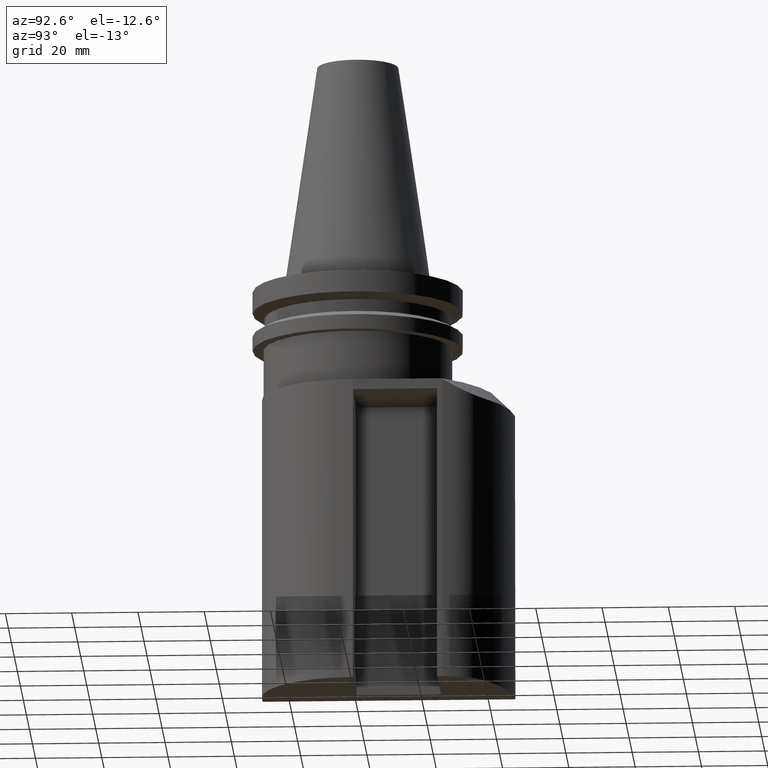
[diagram: clean part render]
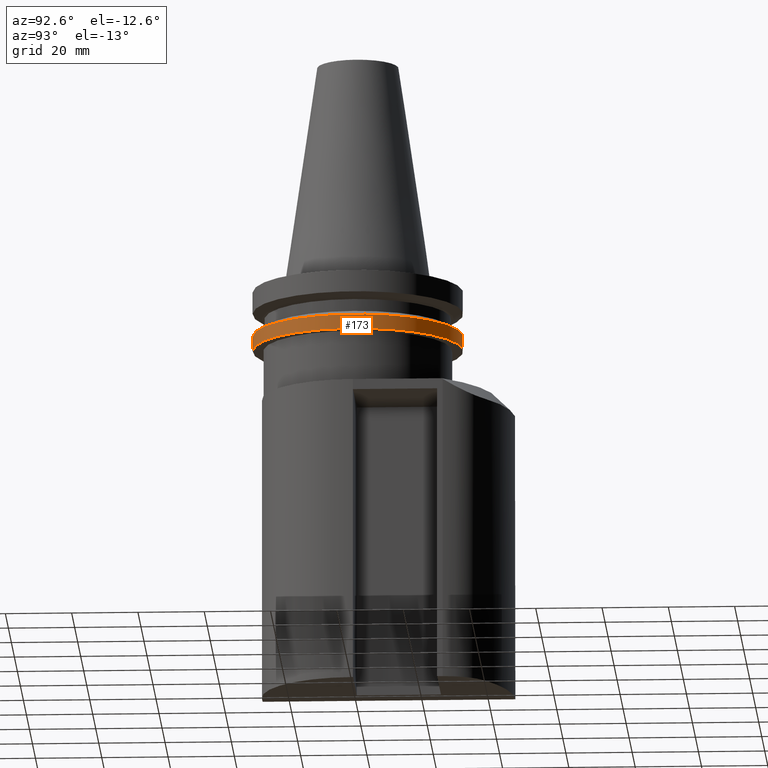
[diagram: same view with one face highlighted and labeled with its STEP entity id]
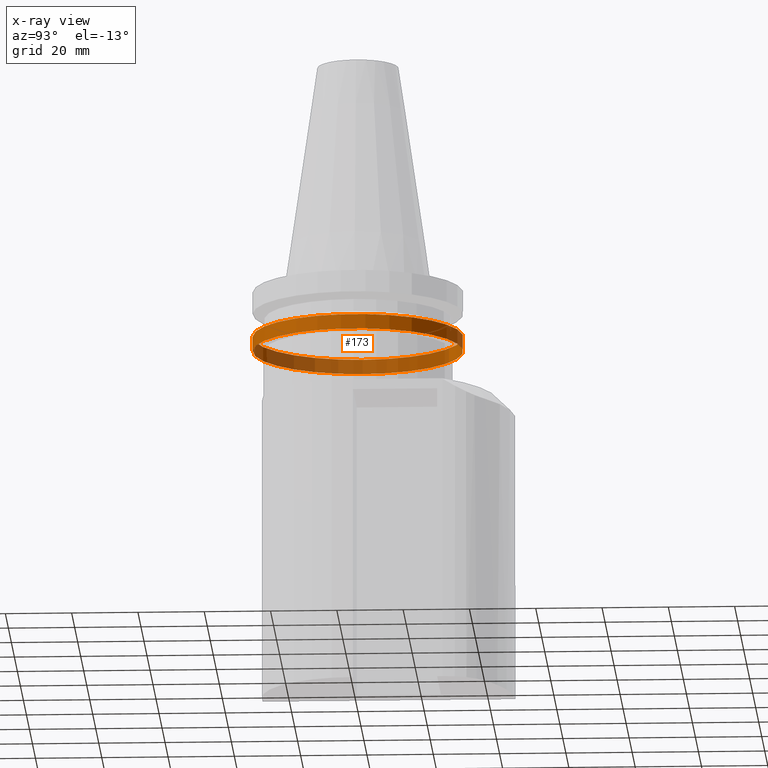
[diagram: x-ray of the same camera — body ghosted, the highlighted face saturated]
A machine part, auxiliary view. The second image highlights one B-rep face of the part: STEP entity #173.
The next image is the same camera in x-ray: the body ghosted, the highlighted face saturated — about 44% of this face is hidden behind the body in this view.
In plain terms, the highlighted cylindrical surface (bore or boss wall) has radius 31.75 mm, axis along (0, -0, -1).
Its self-contained STEP definition (entity closure, byte-faithful):
#173=ADVANCED_FACE('Unnamed[1]',(#420,#421),#422,.T.);
#277=EDGE_CURVE('Unnamed[1]',#563,#563,#564,.T.);
#289=EDGE_CURVE('Unnamed[1]',#578,#578,#579,.T.);
#420=FACE_BOUND('',#745,.T.);
#421=FACE_BOUND('',#746,.T.);
#422=CYLINDRICAL_SURFACE('',#747,31.75);
#563=VERTEX_POINT('',#967);
#564=CIRCLE('',#968,31.75);
#578=VERTEX_POINT('',#1007);
#579=CIRCLE('',#1008,31.75);
#745=EDGE_LOOP('',(#1150));
#746=EDGE_LOOP('',(#1151));
#747=AXIS2_PLACEMENT_3D('',#1152,#1153,#1154);
#967=CARTESIAN_POINT('',(-31.7499999999999,4.9351326918266E-015,-14.65316677));
#968=AXIS2_PLACEMENT_3D('',#1317,#1318,#1319);
#1007=CARTESIAN_POINT('',(-31.7499999999999,4.66590430475139E-015,-19.05));
#1008=AXIS2_PLACEMENT_3D('',#1332,#1333,#1334);
#1150=ORIENTED_EDGE('',*,*,#289,.F.);
#1151=ORIENTED_EDGE('',*,*,#277,.T.);
#1152=CARTESIAN_POINT('',(1.0667681185549E-013,-1.03186188265027E-015,-16.851583385));
#1153=DIRECTION('',(1.33746078076942E-015,-6.12323399573679E-017,-1.0));
#1154=DIRECTION('',(-1.0,1.83697019872103E-016,-1.33746078076942E-015));
#1317=CARTESIAN_POINT('',(1.03736515853136E-013,-8.97247689112662E-016,-14.65316677));
#1318=DIRECTION('',(1.33746078076942E-015,-6.12323399573679E-017,-1.0));
#1319=DIRECTION('',(-1.0,1.83697019872103E-016,-1.33746078076942E-015));
#1332=CARTESIAN_POINT('',(1.09617107857845E-013,-1.16647607618787E-015,-19.05));
#1333=DIRECTION('',(1.33746078076942E-015,-6.12323399573679E-017,-1.0));
#1334=DIRECTION('',(-1.0,1.83697019872103E-016,-1.33746078076942E-015));